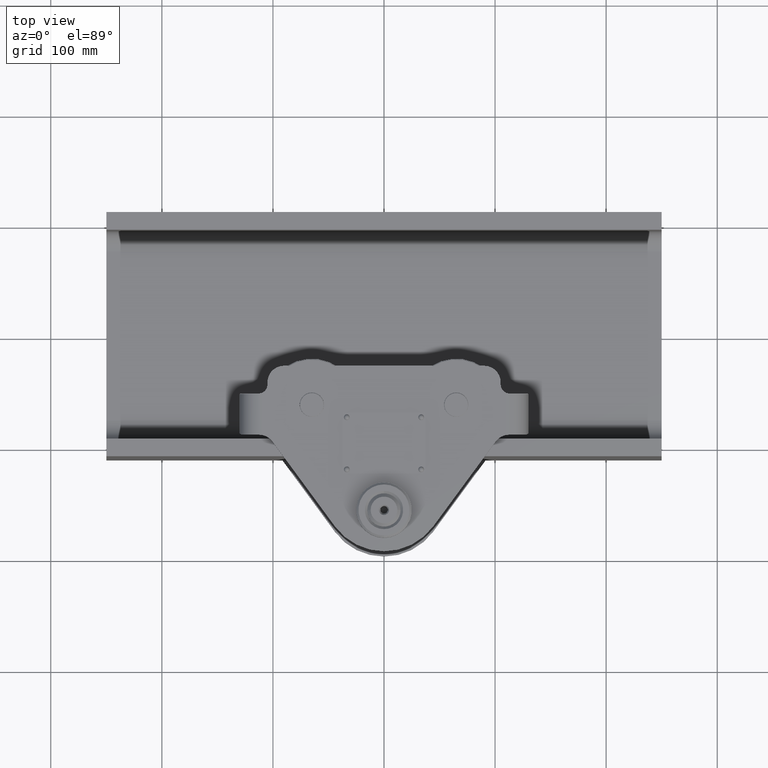
[diagram: clean part render]
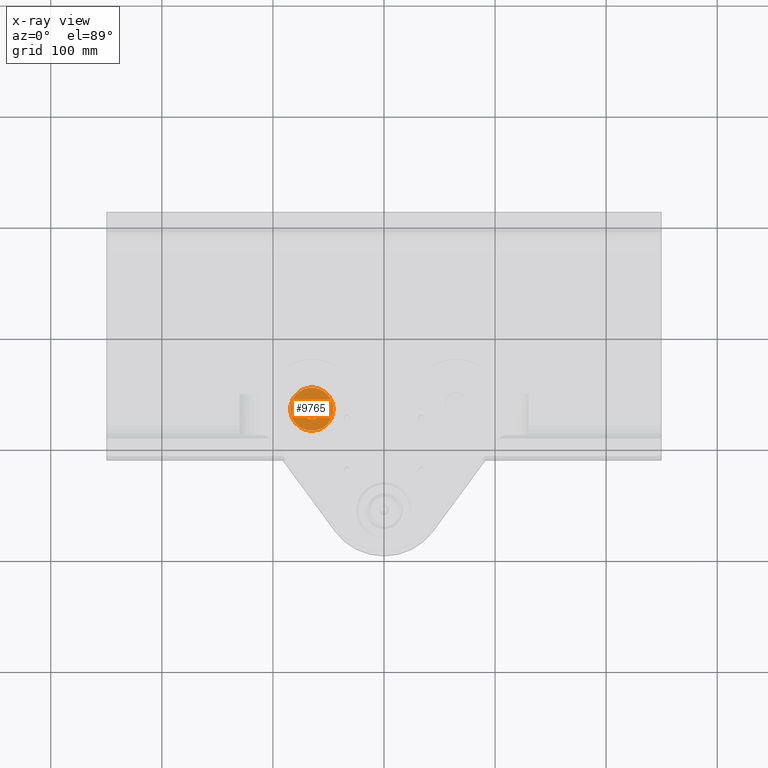
[diagram: x-ray — body ghosted, one internal face saturated and labeled with its STEP entity id]
A machine part, top view, then the same camera in x-ray: the body is ghosted and one INTERNAL B-rep face — a face not visible from any outside direction — is saturated and labeled: STEP entity #9765.
In plain terms, the highlighted planar face has unit normal (0, 0, 1).
Its self-contained STEP definition (entity closure, byte-faithful):
#909 = CIRCLE ( 'NONE', #24508, 9.099999999999997900 ) ;
#941 = VERTEX_POINT ( 'NONE', #26398 ) ;
#1018 = DIRECTION ( 'NONE',  ( 1.000000000000000000, 0.0000000000000000000, -0.0000000000000000000 ) ) ;
#5542 = DIRECTION ( 'NONE',  ( 0.0000000000000000000, 0.0000000000000000000, 1.000000000000000000 ) ) ;
#5741 = CARTESIAN_POINT ( 'NONE',  ( -84.40000000000013400, -63.99999999999966600, -99.00000000000012800 ) ) ;
#7550 = FACE_OUTER_BOUND ( 'NONE', #16599, .T. ) ;
#9765 = ADVANCED_FACE ( 'NONE', ( #10842, #7550 ), #33221, .T. ) ;
#10842 = FACE_BOUND ( 'NONE', #36976, .T. ) ;
#12565 = DIRECTION ( 'NONE',  ( 0.0000000000000000000, 0.0000000000000000000, 1.000000000000000000 ) ) ;
#14825 = DIRECTION ( 'NONE',  ( 1.000000000000000000, 0.0000000000000000000, 0.0000000000000000000 ) ) ;
#14937 = AXIS2_PLACEMENT_3D ( 'NONE', #27730, #19038, #1018 ) ;
#16475 = ORIENTED_EDGE ( 'NONE', *, *, #33359, .T. ) ;
#16599 = EDGE_LOOP ( 'NONE', ( #16475, #31941 ) ) ;
#17639 = CARTESIAN_POINT ( 'NONE',  ( -74.10000000000012200, -63.99999999999966600, -99.00000000000012800 ) ) ;
#17704 = EDGE_CURVE ( 'NONE', #28106, #23906, #909, .T. ) ;
#18576 = ORIENTED_EDGE ( 'NONE', *, *, #17704, .T. ) ;
#19038 = DIRECTION ( 'NONE',  ( 0.0000000000000000000, 0.0000000000000000000, 1.000000000000000000 ) ) ;
#19521 = CARTESIAN_POINT ( 'NONE',  ( -55.90000000000013400, -63.99999999999966600, -99.00000000000012800 ) ) ;
#20173 = CIRCLE ( 'NONE', #22840, 19.40000000000000200 ) ;
#21426 = AXIS2_PLACEMENT_3D ( 'NONE', #24094, #29977, #27128 ) ;
#22840 = AXIS2_PLACEMENT_3D ( 'NONE', #26656, #5542, #14825 ) ;
#23575 = EDGE_CURVE ( 'NONE', #30204, #941, #20173, .T. ) ;
#23906 = VERTEX_POINT ( 'NONE', #19521 ) ;
#24094 = CARTESIAN_POINT ( 'NONE',  ( -65.00000000000012800, -63.99999999999966600, -99.00000000000012800 ) ) ;
#24508 = AXIS2_PLACEMENT_3D ( 'NONE', #33241, #27207, #39277 ) ;
#26398 = CARTESIAN_POINT ( 'NONE',  ( -45.60000000000012900, -63.99999999999966600, -99.00000000000012800 ) ) ;
#26656 = CARTESIAN_POINT ( 'NONE',  ( -65.00000000000012800, -63.99999999999966600, -99.00000000000012800 ) ) ;
#26704 = AXIS2_PLACEMENT_3D ( 'NONE', #36829, #12565, #33759 ) ;
#27128 = DIRECTION ( 'NONE',  ( 1.000000000000000000, 0.0000000000000000000, 0.0000000000000000000 ) ) ;
#27207 = DIRECTION ( 'NONE',  ( -0.0000000000000000000, -0.0000000000000000000, -1.000000000000000000 ) ) ;
#27730 = CARTESIAN_POINT ( 'NONE',  ( -65.00000000000012800, -63.99999999999966600, -99.00000000000012800 ) ) ;
#28106 = VERTEX_POINT ( 'NONE', #17639 ) ;
#29559 = EDGE_CURVE ( 'NONE', #23906, #28106, #35567, .T. ) ;
#29977 = DIRECTION ( 'NONE',  ( -0.0000000000000000000, -0.0000000000000000000, -1.000000000000000000 ) ) ;
#30204 = VERTEX_POINT ( 'NONE', #5741 ) ;
#31941 = ORIENTED_EDGE ( 'NONE', *, *, #23575, .T. ) ;
#32915 = ORIENTED_EDGE ( 'NONE', *, *, #29559, .T. ) ;
#33221 = PLANE ( 'NONE',  #14937 ) ;
#33241 = CARTESIAN_POINT ( 'NONE',  ( -65.00000000000012800, -63.99999999999966600, -99.00000000000012800 ) ) ;
#33359 = EDGE_CURVE ( 'NONE', #941, #30204, #35592, .T. ) ;
#33759 = DIRECTION ( 'NONE',  ( 1.000000000000000000, 0.0000000000000000000, 0.0000000000000000000 ) ) ;
#35567 = CIRCLE ( 'NONE', #21426, 9.099999999999997900 ) ;
#35592 = CIRCLE ( 'NONE', #26704, 19.40000000000000200 ) ;
#36829 = CARTESIAN_POINT ( 'NONE',  ( -65.00000000000012800, -63.99999999999966600, -99.00000000000012800 ) ) ;
#36976 = EDGE_LOOP ( 'NONE', ( #32915, #18576 ) ) ;
#39277 = DIRECTION ( 'NONE',  ( 1.000000000000000000, 0.0000000000000000000, 0.0000000000000000000 ) ) ;